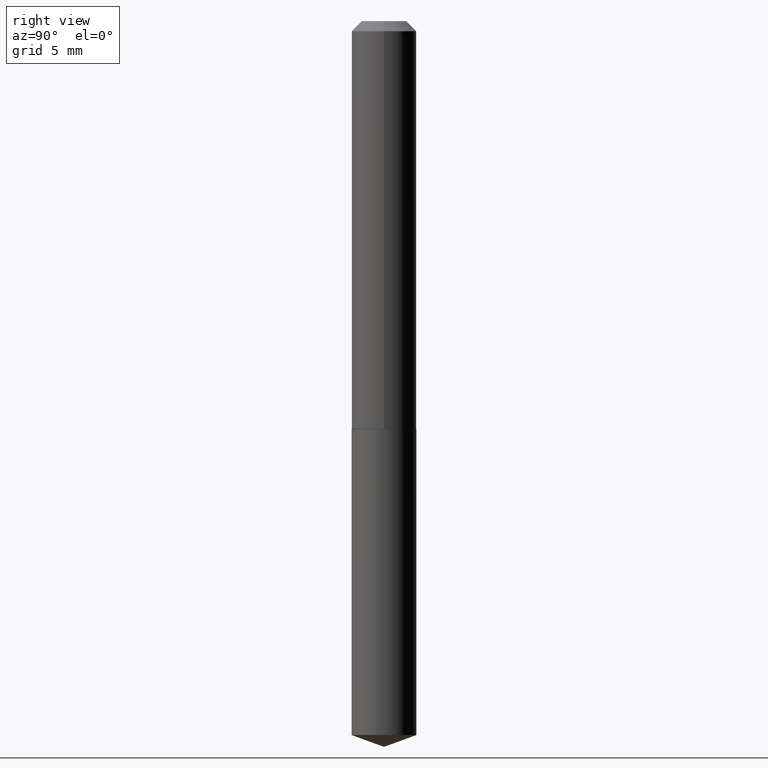
[diagram: clean part render]
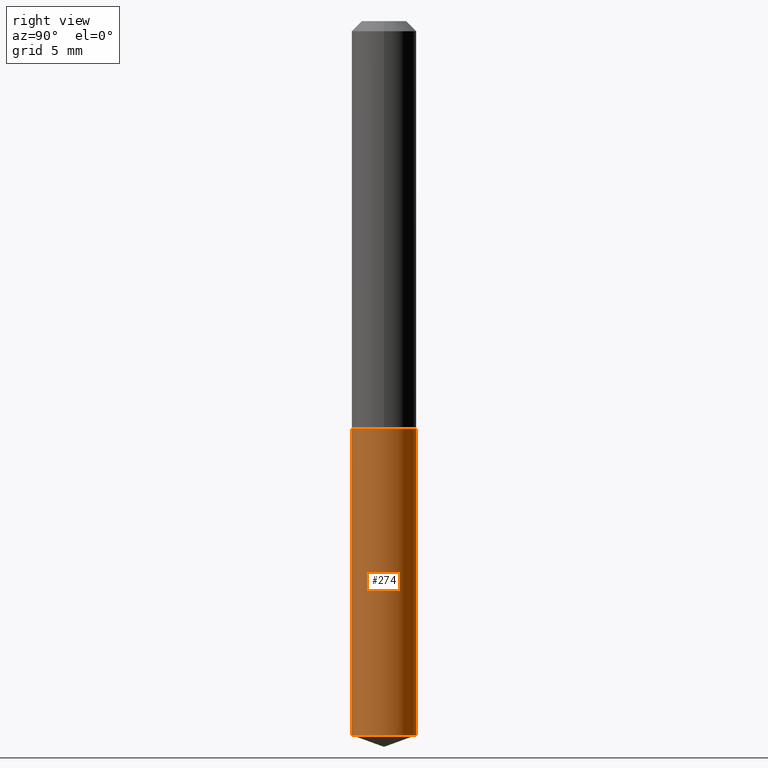
[diagram: same view with one face highlighted and labeled with its STEP entity id]
A machine part, right view. The second image highlights one B-rep face of the part: STEP entity #274.
In plain terms, the highlighted cylindrical surface (edge-blend (fillet) strip) has radius 2.5527 mm, axis along (-0, 0, 1).
Its self-contained STEP definition (entity closure, byte-faithful):
#6 = EDGE_LOOP ( 'NONE', ( #230, #135, #69, #27 ) ) ;
#9 = CARTESIAN_POINT ( 'NONE',  ( 3.089849836614920220E-29, -4.411486671628314645E-15, -1.263500000000000068 ) ) ;
#15 = CARTESIAN_POINT ( 'NONE',  ( 7.140954494389548650E-16, 0.1004999999999956067, -1.263500000000000290 ) ) ;
#23 = CIRCLE ( 'NONE', #352, 0.1005000000000000060 ) ;
#27 = ORIENTED_EDGE ( 'NONE', *, *, #254, .F. ) ;
#32 = EDGE_CURVE ( 'NONE', #324, #121, #23, .T. ) ;
#38 = CARTESIAN_POINT ( 'NONE',  ( 7.140954494389315936E-16, 0.1004999999999956067, -1.263500000000000290 ) ) ;
#41 = DIRECTION ( 'NONE',  ( -2.445400458116039317E-29, 3.491579217168223219E-15, 1.000000000000000000 ) ) ;
#47 = LINE ( 'NONE', #76, #89 ) ;
#53 = CARTESIAN_POINT ( 'NONE',  ( -7.017877491074157398E-16, -0.1005000000000077498, -2.213420991456246600 ) ) ;
#67 = CIRCLE ( 'NONE', #323, 0.1005000000000000060 ) ;
#69 = ORIENTED_EDGE ( 'NONE', *, *, #32, .F. ) ;
#76 = CARTESIAN_POINT ( 'NONE',  ( -7.017877491074388140E-16, -0.1005000000000044191, -1.263499999999999845 ) ) ;
#85 = CARTESIAN_POINT ( 'NONE',  ( -7.017877491074388140E-16, -0.1005000000000044191, -1.263499999999999845 ) ) ;
#89 = VECTOR ( 'NONE', #347, 39.37007874015748143 ) ;
#95 = FACE_OUTER_BOUND ( 'NONE', #6, .T. ) ;
#108 = DIRECTION ( 'NONE',  ( -6.982962677686265922E-15, -1.000000000000000000, 2.718256710113694497E-15 ) ) ;
#121 = VERTEX_POINT ( 'NONE', #15 ) ;
#131 = EDGE_CURVE ( 'NONE', #365, #121, #333, .T. ) ;
#135 = ORIENTED_EDGE ( 'NONE', *, *, #131, .T. ) ;
#157 = DIRECTION ( 'NONE',  ( -2.445400458116039317E-29, 3.491579217168222825E-15, 1.000000000000000000 ) ) ;
#161 = DIRECTION ( 'NONE',  ( -6.982962677686265922E-15, -1.000000000000000000, 2.718256710113694497E-15 ) ) ;
#177 = VERTEX_POINT ( 'NONE', #53 ) ;
#189 = CARTESIAN_POINT ( 'NONE',  ( 3.089849836614920220E-29, -4.411486671628314645E-15, -1.263500000000000068 ) ) ;
#215 = CARTESIAN_POINT ( 'NONE',  ( 7.140954494389547664E-16, 0.1004999999999922899, -2.213420991456247044 ) ) ;
#230 = ORIENTED_EDGE ( 'NONE', *, *, #381, .T. ) ;
#243 = DIRECTION ( 'NONE',  ( -6.982962677686265922E-15, -1.000000000000000000, 2.718256710113694497E-15 ) ) ;
#254 = EDGE_CURVE ( 'NONE', #177, #324, #47, .T. ) ;
#274 = ADVANCED_FACE ( 'NONE', ( #95 ), #307, .T. ) ;
#280 = DIRECTION ( 'NONE',  ( -2.445400458116039317E-29, 3.491579217168223219E-15, 1.000000000000000000 ) ) ;
#307 = CYLINDRICAL_SURFACE ( 'NONE', #344, 0.1005000000000000060 ) ;
#309 = CARTESIAN_POINT ( 'NONE',  ( 5.412787064296067741E-29, -7.728211063348778452E-15, -2.213420991456246600 ) ) ;
#313 = VECTOR ( 'NONE', #157, 39.37007874015748143 ) ;
#323 = AXIS2_PLACEMENT_3D ( 'NONE', #309, #41, #161 ) ;
#324 = VERTEX_POINT ( 'NONE', #85 ) ;
#333 = LINE ( 'NONE', #38, #313 ) ;
#344 = AXIS2_PLACEMENT_3D ( 'NONE', #189, #346, #243 ) ;
#346 = DIRECTION ( 'NONE',  ( -2.445400458116039317E-29, 3.491579217168223219E-15, 1.000000000000000000 ) ) ;
#347 = DIRECTION ( 'NONE',  ( -2.445400458116039317E-29, 3.491579217168222825E-15, 1.000000000000000000 ) ) ;
#352 = AXIS2_PLACEMENT_3D ( 'NONE', #9, #280, #108 ) ;
#365 = VERTEX_POINT ( 'NONE', #215 ) ;
#381 = EDGE_CURVE ( 'NONE', #177, #365, #67, .T. ) ;